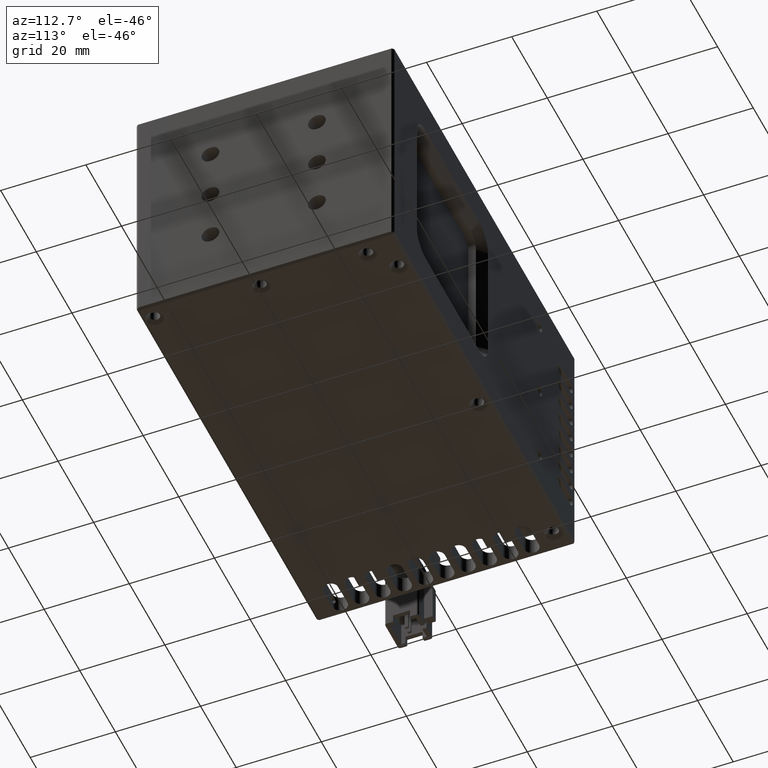
[diagram: clean part render]
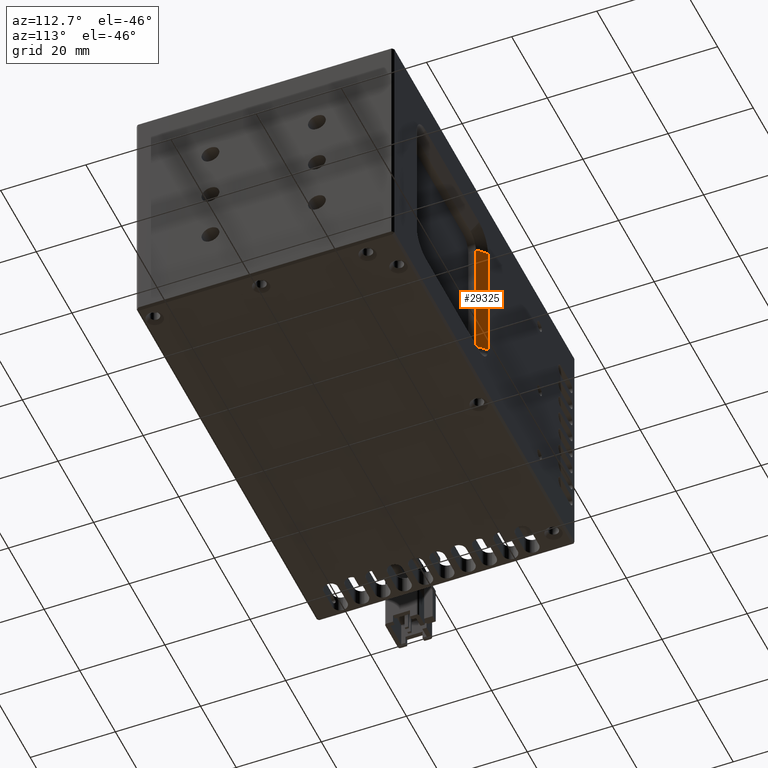
[diagram: same view with one face highlighted and labeled with its STEP entity id]
A machine part, auxiliary view. The second image highlights one B-rep face of the part: STEP entity #29325.
In plain terms, the highlighted planar face has unit normal (-0.7071, -0.7071, -0).
Its self-contained STEP definition (entity closure, byte-faithful):
#178 = VECTOR ( 'NONE', #66376, 1000.000000000000100 ) ;
#1307 = AXIS2_PLACEMENT_3D ( 'NONE', #36810, #5070, #42174 ) ;
#5070 = DIRECTION ( 'NONE',  ( -0.7071067811865451300, -0.7071067811865499000, -5.700005625584647400E-016 ) ) ;
#5189 = VECTOR ( 'NONE', #37957, 1000.000000000000100 ) ;
#5553 = ORIENTED_EDGE ( 'NONE', *, *, #13517, .T. ) ;
#5836 = CARTESIAN_POINT ( 'NONE',  ( -17.57424922390753300, 50.77699333090738800, 44.00000000000952800 ) ) ;
#6213 = CARTESIAN_POINT ( 'NONE',  ( -499013.5742492273600, 499046.7769933307400, 13.99999999977704400 ) ) ;
#10971 = VERTEX_POINT ( 'NONE', #36031 ) ;
#13517 = EDGE_CURVE ( 'NONE', #19077, #10971, #19276, .T. ) ;
#15510 = PLANE ( 'NONE',  #1307 ) ;
#17313 = ORIENTED_EDGE ( 'NONE', *, *, #34596, .F. ) ;
#17750 = CARTESIAN_POINT ( 'NONE',  ( -19.57424922391150100, 52.77699333090262000, 3.000000000009523000 ) ) ;
#19034 = FACE_OUTER_BOUND ( 'NONE', #50795, .T. ) ;
#19077 = VERTEX_POINT ( 'NONE', #39817 ) ;
#19276 = LINE ( 'NONE', #6213, #5189 ) ;
#23060 = LINE ( 'NONE', #17750, #51264 ) ;
#29325 = ADVANCED_FACE ( 'NONE', ( #19034 ), #15510, .F. ) ;
#32086 = VERTEX_POINT ( 'NONE', #5836 ) ;
#34596 = EDGE_CURVE ( 'NONE', #19077, #32086, #40622, .T. ) ;
#36031 = CARTESIAN_POINT ( 'NONE',  ( -19.57424922386819000, 52.77699333088146700, 14.00000000000955300 ) ) ;
#36810 = CARTESIAN_POINT ( 'NONE',  ( -17.57424922391148700, 50.77699333090262000, 14.00000000000955300 ) ) ;
#37838 = ORIENTED_EDGE ( 'NONE', *, *, #48304, .F. ) ;
#37957 = DIRECTION ( 'NONE',  ( -0.7071067811865501300, 0.7071067811865450200, -3.294935726228967900E-016 ) ) ;
#39817 = CARTESIAN_POINT ( 'NONE',  ( -17.57424922389024100, 50.77699333089795200, 14.00000000000955300 ) ) ;
#40622 = LINE ( 'NONE', #47771, #67106 ) ;
#40839 = LINE ( 'NONE', #66595, #178 ) ;
#42174 = DIRECTION ( 'NONE',  ( -0.7071067811865499000, 0.7071067811865451300, -2.428979669993471400E-016 ) ) ;
#47771 = CARTESIAN_POINT ( 'NONE',  ( -17.57424922391148700, 50.77699333090262000, 14.00000000000955300 ) ) ;
#48304 = EDGE_CURVE ( 'NONE', #32086, #61180, #40839, .T. ) ;
#49124 = ORIENTED_EDGE ( 'NONE', *, *, #63532, .F. ) ;
#50795 = EDGE_LOOP ( 'NONE', ( #49124, #37838, #17313, #5553 ) ) ;
#51264 = VECTOR ( 'NONE', #54542, 1000.000000000000000 ) ;
#53090 = DIRECTION ( 'NONE',  ( -5.748060626669010600E-016, -2.312964634635746400E-016, 1.000000000000000000 ) ) ;
#54542 = DIRECTION ( 'NONE',  ( 3.435095992033281500E-016, 9.334694145667452600E-032, -1.000000000000000000 ) ) ;
#61180 = VERTEX_POINT ( 'NONE', #67696 ) ;
#63532 = EDGE_CURVE ( 'NONE', #61180, #10971, #23060, .T. ) ;
#66376 = DIRECTION ( 'NONE',  ( -0.7071067811865499000, 0.7071067811865451300, -2.428979669993471400E-016 ) ) ;
#66595 = CARTESIAN_POINT ( 'NONE',  ( -17.57424922391150100, 50.77699333090261300, 44.00000000000952800 ) ) ;
#67106 = VECTOR ( 'NONE', #53090, 1000.000000000000000 ) ;
#67696 = CARTESIAN_POINT ( 'NONE',  ( -19.57424922392584700, 52.77699333091693700, 44.00000000000952800 ) ) ;